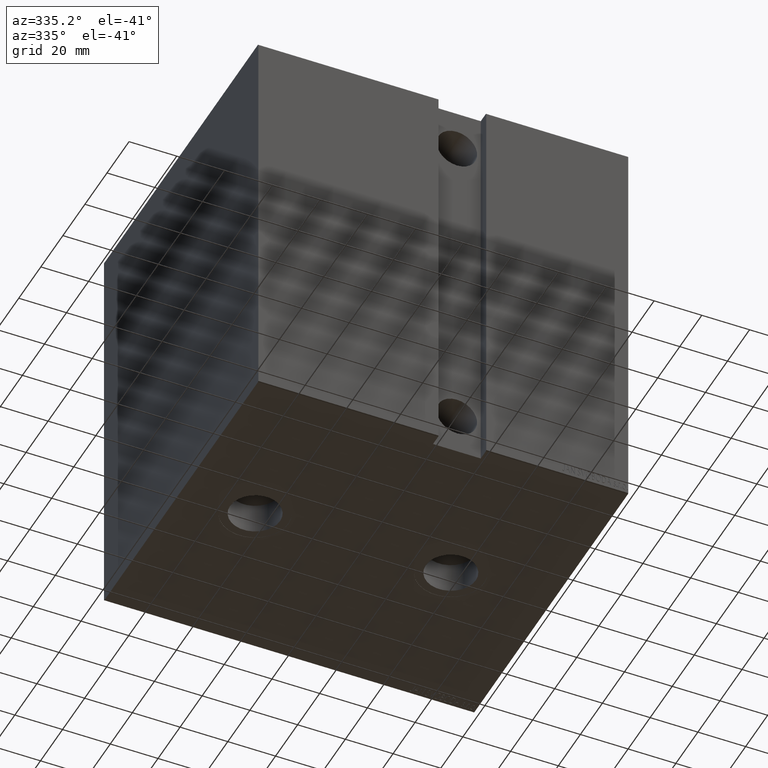
[diagram: clean part render]
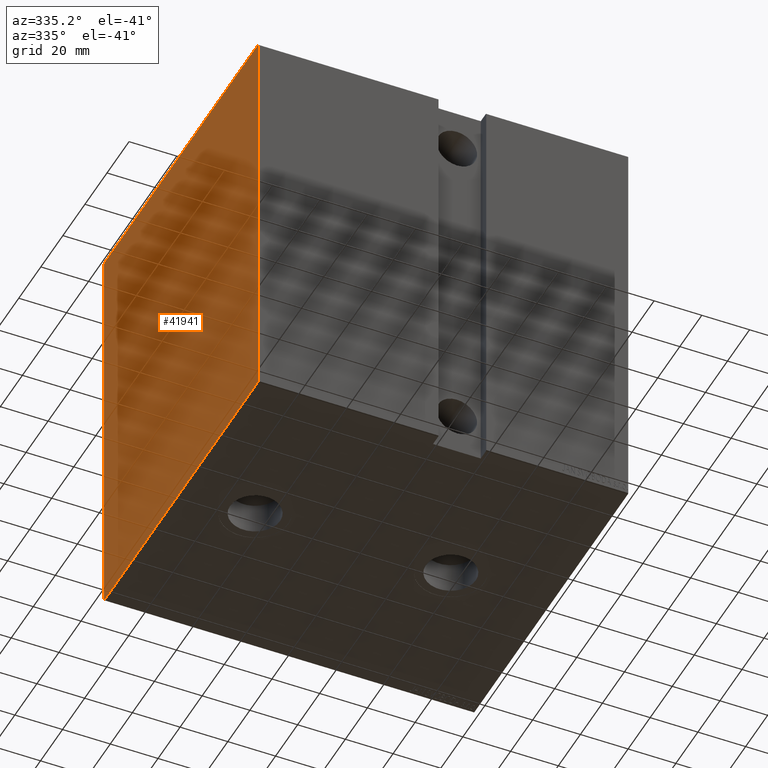
[diagram: same view with one face highlighted and labeled with its STEP entity id]
A machine part, auxiliary view. The second image highlights one B-rep face of the part: STEP entity #41941.
In plain terms, the highlighted planar face has unit normal (-1, 0, 0).
Its self-contained STEP definition (entity closure, byte-faithful):
#698 = LINE ( 'NONE', #30795, #4984 ) ;
#942 = EDGE_CURVE ( 'NONE', #32152, #29692, #698, .T. ) ;
#1238 = DIRECTION ( 'NONE',  ( -0.000000000000000000, 0.7071067811865965336, 0.7071067811864985009 ) ) ;
#1622 = ORIENTED_EDGE ( 'NONE', *, *, #8399, .T. ) ;
#1768 = FACE_OUTER_BOUND ( 'NONE', #25004, .T. ) ;
#2369 = CARTESIAN_POINT ( 'NONE',  ( 155.0000000000000000, -77.35000000000322018, -77.34999999999607212 ) ) ;
#2451 = DIRECTION ( 'NONE',  ( 0.000000000000000000, 0.000000000000000000, 1.000000000000000000 ) ) ;
#2790 = VECTOR ( 'NONE', #13059, 1000.000000000000114 ) ;
#4491 = CARTESIAN_POINT ( 'NONE',  ( 155.0000000000000000, 77.34999999999517684, -77.35000000000590603 ) ) ;
#4984 = VECTOR ( 'NONE', #7405, 1000.000000000000000 ) ;
#6139 = DIRECTION ( 'NONE',  ( 0.000000000000000000, 0.000000000000000000, -1.000000000000000000 ) ) ;
#6612 = CARTESIAN_POINT ( 'NONE',  ( 155.0000000000000000, 70.00000000000002842, -84.70000000000001705 ) ) ;
#7405 = DIRECTION ( 'NONE',  ( -0.000000000000000000, -0.7071067811865638930, -0.7071067811865311414 ) ) ;
#7598 = EDGE_CURVE ( 'NONE', #34964, #40917, #16462, .T. ) ;
#7736 = LINE ( 'NONE', #4491, #29161 ) ;
#8021 = EDGE_CURVE ( 'NONE', #32790, #32152, #32381, .T. ) ;
#8297 = ORIENTED_EDGE ( 'NONE', *, *, #23111, .T. ) ;
#8399 = EDGE_CURVE ( 'NONE', #25927, #8887, #25395, .T. ) ;
#8887 = VERTEX_POINT ( 'NONE', #37857 ) ;
#10143 = VECTOR ( 'NONE', #2451, 1000.000000000000000 ) ;
#13050 = CARTESIAN_POINT ( 'NONE',  ( 155.0000000000000000, -69.99999999999998579, 85.00000000000000000 ) ) ;
#13059 = DIRECTION ( 'NONE',  ( -0.000000000000000000, -0.7071067811865638930, 0.7071067811865312525 ) ) ;
#13483 = LINE ( 'NONE', #22388, #2790 ) ;
#14951 = CARTESIAN_POINT ( 'NONE',  ( 155.0000000000000000, 0.000000000000000000, 0.000000000000000000 ) ) ;
#15340 = LINE ( 'NONE', #2369, #26552 ) ;
#16462 = LINE ( 'NONE', #17101, #36487 ) ;
#17101 = CARTESIAN_POINT ( 'NONE',  ( 155.0000000000000000, -69.99999999999998579, -85.00000000000000000 ) ) ;
#18026 = CARTESIAN_POINT ( 'NONE',  ( 155.0000000000000000, 69.70000000000000284, -85.00000000000000000 ) ) ;
#18347 = VERTEX_POINT ( 'NONE', #36242 ) ;
#19503 = DIRECTION ( 'NONE',  ( 0.000000000000000000, 1.000000000000000000, 0.000000000000000000 ) ) ;
#19636 = EDGE_CURVE ( 'NONE', #8887, #32790, #13483, .T. ) ;
#20726 = ORIENTED_EDGE ( 'NONE', *, *, #8021, .T. ) ;
#21385 = ORIENTED_EDGE ( 'NONE', *, *, #37662, .T. ) ;
#21636 = AXIS2_PLACEMENT_3D ( 'NONE', #14951, #25569, #38136 ) ;
#22058 = DIRECTION ( 'NONE',  ( -0.000000000000000000, 0.7071067811865149322, -0.7071067811865802133 ) ) ;
#22388 = CARTESIAN_POINT ( 'NONE',  ( 155.0000000000000000, 77.34999999999841691, 77.35000000000199805 ) ) ;
#23111 = EDGE_CURVE ( 'NONE', #40917, #25927, #7736, .T. ) ;
#25004 = EDGE_LOOP ( 'NONE', ( #34426, #8297, #1622, #37300, #20726, #33303, #21385, #31316 ) ) ;
#25036 = CARTESIAN_POINT ( 'NONE',  ( 155.0000000000000000, 70.00000000000002842, 85.00000000000001421 ) ) ;
#25395 = LINE ( 'NONE', #31466, #10143 ) ;
#25569 = DIRECTION ( 'NONE',  ( 1.000000000000000000, 0.000000000000000000, -0.000000000000000000 ) ) ;
#25927 = VERTEX_POINT ( 'NONE', #6612 ) ;
#26552 = VECTOR ( 'NONE', #22058, 999.9999999999998863 ) ;
#26638 = VECTOR ( 'NONE', #6139, 1000.000000000000000 ) ;
#27171 = CARTESIAN_POINT ( 'NONE',  ( 155.0000000000000000, -69.99999999999998579, 84.70000000000004547 ) ) ;
#28076 = CARTESIAN_POINT ( 'NONE',  ( 155.0000000000000000, -69.70000000000000284, -85.00000000000000000 ) ) ;
#29161 = VECTOR ( 'NONE', #1238, 1000.000000000000114 ) ;
#29692 = VERTEX_POINT ( 'NONE', #27171 ) ;
#30142 = LINE ( 'NONE', #13050, #26638 ) ;
#30795 = CARTESIAN_POINT ( 'NONE',  ( 155.0000000000000000, -77.34999999999840270, 77.35000000000198384 ) ) ;
#30847 = CARTESIAN_POINT ( 'NONE',  ( 155.0000000000000000, 69.70000000000007390, 85.00000000000001421 ) ) ;
#31316 = ORIENTED_EDGE ( 'NONE', *, *, #33561, .T. ) ;
#31466 = CARTESIAN_POINT ( 'NONE',  ( 155.0000000000000000, 70.00000000000002842, -85.00000000000000000 ) ) ;
#31568 = VECTOR ( 'NONE', #42129, 1000.000000000000000 ) ;
#32152 = VERTEX_POINT ( 'NONE', #36228 ) ;
#32381 = LINE ( 'NONE', #25036, #31568 ) ;
#32790 = VERTEX_POINT ( 'NONE', #30847 ) ;
#33303 = ORIENTED_EDGE ( 'NONE', *, *, #942, .T. ) ;
#33561 = EDGE_CURVE ( 'NONE', #18347, #34964, #15340, .T. ) ;
#34426 = ORIENTED_EDGE ( 'NONE', *, *, #7598, .T. ) ;
#34964 = VERTEX_POINT ( 'NONE', #28076 ) ;
#36228 = CARTESIAN_POINT ( 'NONE',  ( 155.0000000000000000, -69.70000000000001705, 85.00000000000000000 ) ) ;
#36242 = CARTESIAN_POINT ( 'NONE',  ( 155.0000000000000000, -69.99999999999998579, -84.69999999999998863 ) ) ;
#36487 = VECTOR ( 'NONE', #19503, 1000.000000000000000 ) ;
#37300 = ORIENTED_EDGE ( 'NONE', *, *, #19636, .T. ) ;
#37662 = EDGE_CURVE ( 'NONE', #29692, #18347, #30142, .T. ) ;
#37857 = CARTESIAN_POINT ( 'NONE',  ( 155.0000000000000000, 70.00000000000002842, 84.70000000000007390 ) ) ;
#38136 = DIRECTION ( 'NONE',  ( -0.000000000000000000, 0.000000000000000000, -1.000000000000000000 ) ) ;
#40917 = VERTEX_POINT ( 'NONE', #18026 ) ;
#41592 = PLANE ( 'NONE',  #21636 ) ;
#41941 = ADVANCED_FACE ( 'NONE', ( #1768 ), #41592, .T. ) ;
#42129 = DIRECTION ( 'NONE',  ( 0.000000000000000000, -1.000000000000000000, -9.912705577010325549E-17 ) ) ;